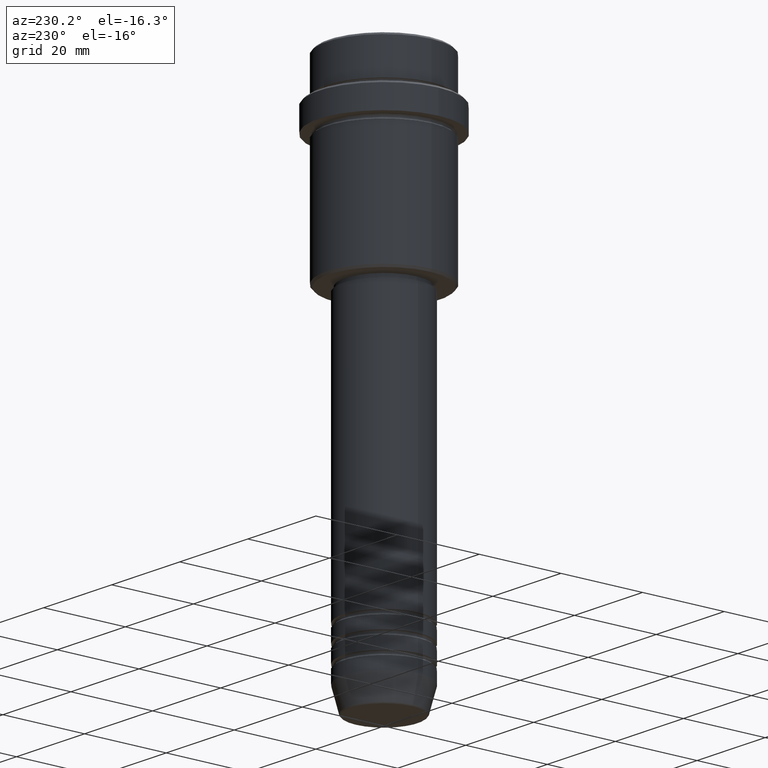
[diagram: clean part render]
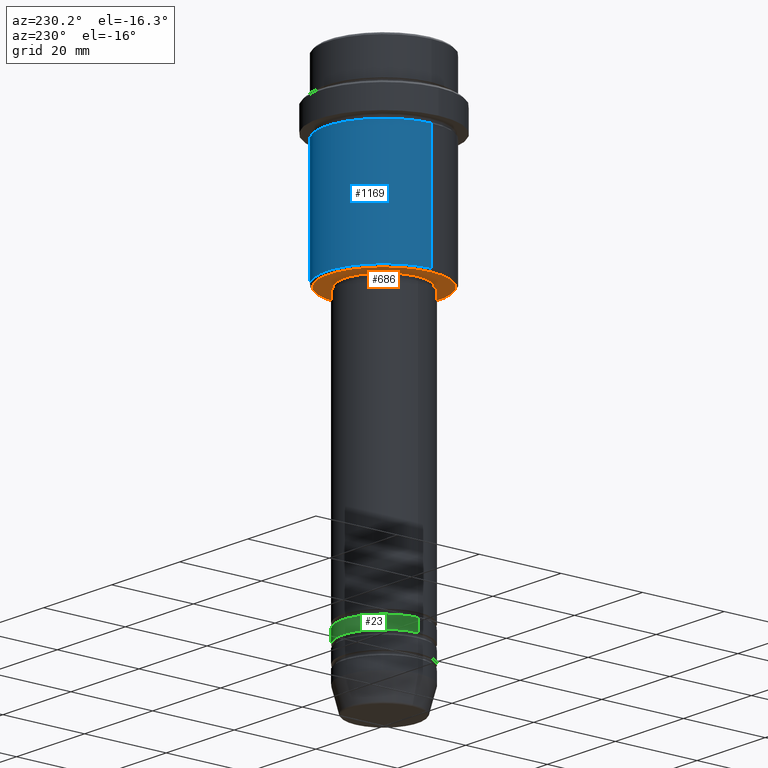
[diagram: same view with three faces highlighted in distinct colors, each labeled with its STEP entity id]
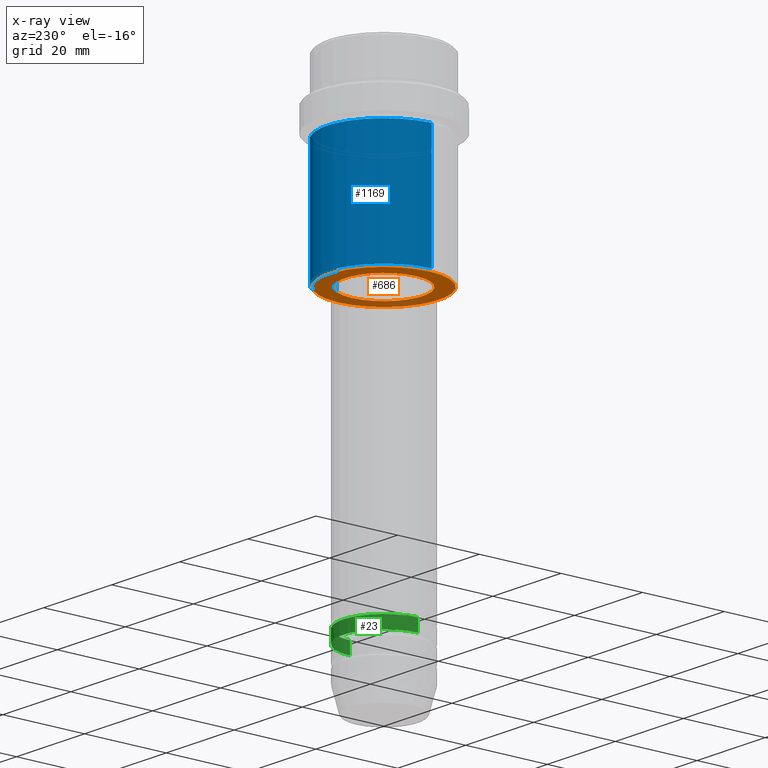
[diagram: x-ray of the same camera — body ghosted, the three highlighted faces saturated]
A machine part, auxiliary view with three faces highlighted in distinct colors.
The next image is the same camera in x-ray (body ghosted, the three faces saturated) — at least one of them is partly hidden behind the body in this view.
Their STEP definitions:

[orange] entity #686 — the highlighted planar face has unit normal (0, 0, -1).
#9 = PLANE ( 'NONE',  #1112 ) ;
#29 = DIRECTION ( 'NONE',  ( 0.000000000000000000, 0.000000000000000000, -1.000000000000000000 ) ) ;
#34 = CARTESIAN_POINT ( 'NONE',  ( 0.000000000000000000, 0.000000000000000000, -46.00000000000000000 ) ) ;
#96 = CARTESIAN_POINT ( 'NONE',  ( 13.50000000000002665, 0.000000000000000000, -46.00000000000000000 ) ) ;
#116 = CARTESIAN_POINT ( 'NONE',  ( 0.000000000000000000, 0.000000000000000000, -46.00000000000000000 ) ) ;
#119 = EDGE_CURVE ( 'NONE', #511, #142, #536, .T. ) ;
#142 = VERTEX_POINT ( 'NONE', #1206 ) ;
#149 = CARTESIAN_POINT ( 'NONE',  ( 9.499999999999996447, 0.000000000000000000, -46.00000000000000000 ) ) ;
#247 = DIRECTION ( 'NONE',  ( 1.000000000000000000, 0.000000000000000000, 0.000000000000000000 ) ) ;
#304 = AXIS2_PLACEMENT_3D ( 'NONE', #34, #29, #462 ) ;
#325 = VERTEX_POINT ( 'NONE', #96 ) ;
#347 = CARTESIAN_POINT ( 'NONE',  ( 0.000000000000000000, 0.000000000000000000, -46.00000000000000000 ) ) ;
#375 = EDGE_LOOP ( 'NONE', ( #1148, #863 ) ) ;
#429 = CIRCLE ( 'NONE', #754, 9.499999999999996447 ) ;
#462 = DIRECTION ( 'NONE',  ( -1.000000000000000000, 0.000000000000000000, 0.000000000000000000 ) ) ;
#495 = FACE_OUTER_BOUND ( 'NONE', #1171, .T. ) ;
#511 = VERTEX_POINT ( 'NONE', #149 ) ;
#534 = DIRECTION ( 'NONE',  ( 0.000000000000000000, 0.000000000000000000, -1.000000000000000000 ) ) ;
#536 = CIRCLE ( 'NONE', #1224, 9.499999999999996447 ) ;
#555 = ORIENTED_EDGE ( 'NONE', *, *, #765, .T. ) ;
#644 = DIRECTION ( 'NONE',  ( 1.000000000000000000, 0.000000000000000000, 0.000000000000000000 ) ) ;
#668 = DIRECTION ( 'NONE',  ( -0.000000000000000000, -0.000000000000000000, 1.000000000000000000 ) ) ;
#686 = ADVANCED_FACE ( 'NONE', ( #495, #925 ), #9, .T. ) ;
#724 = DIRECTION ( 'NONE',  ( 0.000000000000000000, 0.000000000000000000, -1.000000000000000000 ) ) ;
#754 = AXIS2_PLACEMENT_3D ( 'NONE', #347, #668, #247 ) ;
#765 = EDGE_CURVE ( 'NONE', #1127, #325, #1186, .T. ) ;
#769 = CARTESIAN_POINT ( 'NONE',  ( 0.000000000000000000, 0.000000000000000000, -46.00000000000000000 ) ) ;
#824 = CIRCLE ( 'NONE', #304, 13.50000000000002665 ) ;
#863 = ORIENTED_EDGE ( 'NONE', *, *, #954, .T. ) ;
#925 = FACE_BOUND ( 'NONE', #375, .T. ) ;
#954 = EDGE_CURVE ( 'NONE', #142, #511, #429, .T. ) ;
#986 = EDGE_CURVE ( 'NONE', #325, #1127, #824, .T. ) ;
#999 = ORIENTED_EDGE ( 'NONE', *, *, #986, .T. ) ;
#1071 = CARTESIAN_POINT ( 'NONE',  ( -13.50000000000002665, 1.683889348827612034E-15, -46.00000000000000000 ) ) ;
#1112 = AXIS2_PLACEMENT_3D ( 'NONE', #1307, #724, #1319 ) ;
#1127 = VERTEX_POINT ( 'NONE', #1071 ) ;
#1148 = ORIENTED_EDGE ( 'NONE', *, *, #119, .T. ) ;
#1171 = EDGE_LOOP ( 'NONE', ( #999, #555 ) ) ;
#1186 = CIRCLE ( 'NONE', #1369, 13.50000000000002665 ) ;
#1194 = DIRECTION ( 'NONE',  ( -1.000000000000000000, 0.000000000000000000, 0.000000000000000000 ) ) ;
#1206 = CARTESIAN_POINT ( 'NONE',  ( -9.499999999999996447, 1.163414459189985091E-15, -46.00000000000000000 ) ) ;
#1224 = AXIS2_PLACEMENT_3D ( 'NONE', #769, #1416, #644 ) ;
#1307 = CARTESIAN_POINT ( 'NONE',  ( 0.000000000000000000, 14.00000000000000000, -46.00000000000000000 ) ) ;
#1319 = DIRECTION ( 'NONE',  ( -1.000000000000000000, 0.000000000000000000, -0.000000000000000000 ) ) ;
#1369 = AXIS2_PLACEMENT_3D ( 'NONE', #116, #534, #1194 ) ;
#1416 = DIRECTION ( 'NONE',  ( -0.000000000000000000, -0.000000000000000000, 1.000000000000000000 ) ) ;

[blue] entity #1169 — the highlighted cylindrical surface (partial cylindrical patch) has radius 14 mm, axis along (-0, -0, 1).
#12 = LINE ( 'NONE', #1219, #111 ) ;
#32 = CYLINDRICAL_SURFACE ( 'NONE', #1046, 13.99999999999999467 ) ;
#60 = DIRECTION ( 'NONE',  ( -0.000000000000000000, -0.000000000000000000, 1.000000000000000000 ) ) ;
#81 = VERTEX_POINT ( 'NONE', #937 ) ;
#83 = CARTESIAN_POINT ( 'NONE',  ( 0.000000000000000000, 0.000000000000000000, -17.00000000000000355 ) ) ;
#111 = VECTOR ( 'NONE', #788, 1000.000000000000000 ) ;
#217 = ORIENTED_EDGE ( 'NONE', *, *, #524, .F. ) ;
#340 = EDGE_CURVE ( 'NONE', #81, #476, #1110, .T. ) ;
#442 = CARTESIAN_POINT ( 'NONE',  ( 0.000000000000000000, 0.000000000000000000, 0.000000000000000000 ) ) ;
#457 = LINE ( 'NONE', #998, #804 ) ;
#476 = VERTEX_POINT ( 'NONE', #1102 ) ;
#512 = CARTESIAN_POINT ( 'NONE',  ( -13.99999999999999467, 1.714505518806294046E-15, -45.50000000000004263 ) ) ;
#513 = DIRECTION ( 'NONE',  ( -0.000000000000000000, -0.000000000000000000, 1.000000000000000000 ) ) ;
#524 = EDGE_CURVE ( 'NONE', #1237, #81, #457, .T. ) ;
#677 = EDGE_CURVE ( 'NONE', #1237, #905, #1282, .T. ) ;
#788 = DIRECTION ( 'NONE',  ( -0.000000000000000000, -0.000000000000000000, 1.000000000000000000 ) ) ;
#804 = VECTOR ( 'NONE', #885, 1000.000000000000000 ) ;
#862 = DIRECTION ( 'NONE',  ( -0.000000000000000000, -0.000000000000000000, 1.000000000000000000 ) ) ;
#884 = CARTESIAN_POINT ( 'NONE',  ( 13.99999999999999467, 0.000000000000000000, -45.50000000000004263 ) ) ;
#885 = DIRECTION ( 'NONE',  ( -0.000000000000000000, -0.000000000000000000, 1.000000000000000000 ) ) ;
#905 = VERTEX_POINT ( 'NONE', #512 ) ;
#909 = EDGE_LOOP ( 'NONE', ( #1270, #961, #1058, #217 ) ) ;
#913 = EDGE_CURVE ( 'NONE', #905, #476, #12, .T. ) ;
#937 = CARTESIAN_POINT ( 'NONE',  ( 13.99999999999998757, 0.000000000000000000, -17.00000000000000355 ) ) ;
#949 = DIRECTION ( 'NONE',  ( -1.000000000000000000, 0.000000000000000000, 0.000000000000000000 ) ) ;
#961 = ORIENTED_EDGE ( 'NONE', *, *, #913, .T. ) ;
#998 = CARTESIAN_POINT ( 'NONE',  ( 13.99999999999999467, 0.000000000000000000, 0.000000000000000000 ) ) ;
#1007 = FACE_OUTER_BOUND ( 'NONE', #909, .T. ) ;
#1037 = CARTESIAN_POINT ( 'NONE',  ( 0.000000000000000000, 0.000000000000000000, -45.50000000000004263 ) ) ;
#1046 = AXIS2_PLACEMENT_3D ( 'NONE', #442, #862, #1316 ) ;
#1058 = ORIENTED_EDGE ( 'NONE', *, *, #340, .F. ) ;
#1102 = CARTESIAN_POINT ( 'NONE',  ( -13.99999999999998757, 1.714505518806293652E-15, -17.00000000000000355 ) ) ;
#1110 = CIRCLE ( 'NONE', #1184, 13.99999999999998757 ) ;
#1169 = ADVANCED_FACE ( 'NONE', ( #1007 ), #32, .T. ) ;
#1184 = AXIS2_PLACEMENT_3D ( 'NONE', #83, #513, #1390 ) ;
#1219 = CARTESIAN_POINT ( 'NONE',  ( -13.99999999999999467, 1.714505518806294046E-15, 0.000000000000000000 ) ) ;
#1237 = VERTEX_POINT ( 'NONE', #884 ) ;
#1254 = AXIS2_PLACEMENT_3D ( 'NONE', #1037, #60, #949 ) ;
#1270 = ORIENTED_EDGE ( 'NONE', *, *, #677, .T. ) ;
#1282 = CIRCLE ( 'NONE', #1254, 13.99999999999999467 ) ;
#1316 = DIRECTION ( 'NONE',  ( 1.000000000000000000, 0.000000000000000000, 0.000000000000000000 ) ) ;
#1390 = DIRECTION ( 'NONE',  ( 1.000000000000000000, 0.000000000000000000, 0.000000000000000000 ) ) ;

[green] entity #23 — the highlighted cylindrical surface (partial cylindrical patch) has radius 10 mm, axis along (-0, -0, 1).
#23 = ADVANCED_FACE ( 'NONE', ( #1177 ), #853, .T. ) ;
#72 = CARTESIAN_POINT ( 'NONE',  ( 10.00000000000000000, 0.000000000000000000, -115.9999999999998863 ) ) ;
#91 = EDGE_CURVE ( 'NONE', #631, #982, #239, .T. ) ;
#180 = CARTESIAN_POINT ( 'NONE',  ( 10.00000000000000000, 0.000000000000000000, 0.000000000000000000 ) ) ;
#195 = DIRECTION ( 'NONE',  ( -0.000000000000000000, -0.000000000000000000, 1.000000000000000000 ) ) ;
#197 = DIRECTION ( 'NONE',  ( -0.000000000000000000, -0.000000000000000000, 1.000000000000000000 ) ) ;
#207 = ORIENTED_EDGE ( 'NONE', *, *, #1293, .F. ) ;
#239 = CIRCLE ( 'NONE', #1363, 10.00000000000000000 ) ;
#313 = ORIENTED_EDGE ( 'NONE', *, *, #1140, .F. ) ;
#332 = VECTOR ( 'NONE', #1059, 1000.000000000000000 ) ;
#343 = LINE ( 'NONE', #657, #1253 ) ;
#356 = AXIS2_PLACEMENT_3D ( 'NONE', #510, #939, #1385 ) ;
#394 = VERTEX_POINT ( 'NONE', #1359 ) ;
#408 = CARTESIAN_POINT ( 'NONE',  ( 0.000000000000000000, 0.000000000000000000, -115.9999999999998863 ) ) ;
#414 = CARTESIAN_POINT ( 'NONE',  ( 10.00000000000000000, 0.000000000000000000, -112.9999999999998721 ) ) ;
#421 = CARTESIAN_POINT ( 'NONE',  ( 0.000000000000000000, 0.000000000000000000, 0.000000000000000000 ) ) ;
#481 = ORIENTED_EDGE ( 'NONE', *, *, #500, .T. ) ;
#494 = LINE ( 'NONE', #180, #332 ) ;
#500 = EDGE_CURVE ( 'NONE', #982, #394, #343, .T. ) ;
#510 = CARTESIAN_POINT ( 'NONE',  ( 0.000000000000000000, 0.000000000000000000, -112.9999999999998721 ) ) ;
#631 = VERTEX_POINT ( 'NONE', #72 ) ;
#657 = CARTESIAN_POINT ( 'NONE',  ( -10.00000000000000000, 1.224646799147353256E-15, 0.000000000000000000 ) ) ;
#659 = CARTESIAN_POINT ( 'NONE',  ( -10.00000000000000000, 1.224646799147353256E-15, -115.9999999999998863 ) ) ;
#679 = VERTEX_POINT ( 'NONE', #414 ) ;
#853 = CYLINDRICAL_SURFACE ( 'NONE', #1409, 10.00000000000000000 ) ;
#939 = DIRECTION ( 'NONE',  ( -0.000000000000000000, -0.000000000000000000, 1.000000000000000000 ) ) ;
#940 = ORIENTED_EDGE ( 'NONE', *, *, #91, .T. ) ;
#982 = VERTEX_POINT ( 'NONE', #659 ) ;
#1013 = DIRECTION ( 'NONE',  ( -0.000000000000000000, -0.000000000000000000, 1.000000000000000000 ) ) ;
#1059 = DIRECTION ( 'NONE',  ( -0.000000000000000000, -0.000000000000000000, 1.000000000000000000 ) ) ;
#1140 = EDGE_CURVE ( 'NONE', #679, #394, #1201, .T. ) ;
#1175 = EDGE_LOOP ( 'NONE', ( #940, #481, #313, #207 ) ) ;
#1177 = FACE_OUTER_BOUND ( 'NONE', #1175, .T. ) ;
#1201 = CIRCLE ( 'NONE', #356, 10.00000000000000000 ) ;
#1253 = VECTOR ( 'NONE', #1013, 1000.000000000000000 ) ;
#1290 = DIRECTION ( 'NONE',  ( 1.000000000000000000, 0.000000000000000000, 0.000000000000000000 ) ) ;
#1293 = EDGE_CURVE ( 'NONE', #631, #679, #494, .T. ) ;
#1315 = DIRECTION ( 'NONE',  ( 1.000000000000000000, 0.000000000000000000, 0.000000000000000000 ) ) ;
#1359 = CARTESIAN_POINT ( 'NONE',  ( -10.00000000000000000, 1.224646799147353256E-15, -112.9999999999998721 ) ) ;
#1363 = AXIS2_PLACEMENT_3D ( 'NONE', #408, #195, #1290 ) ;
#1385 = DIRECTION ( 'NONE',  ( 1.000000000000000000, 0.000000000000000000, 0.000000000000000000 ) ) ;
#1409 = AXIS2_PLACEMENT_3D ( 'NONE', #421, #197, #1315 ) ;